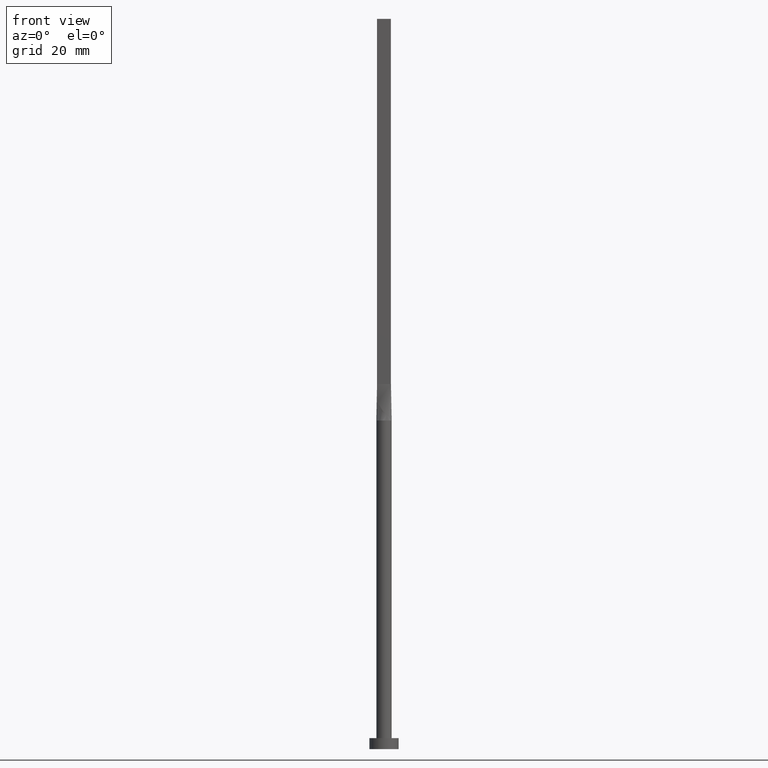
[diagram: clean part render]
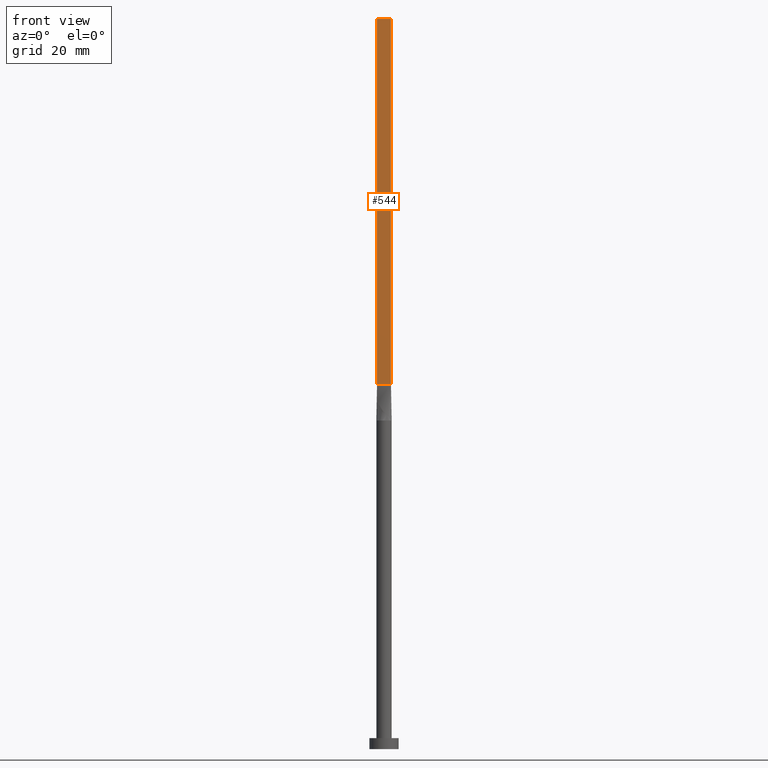
[diagram: same view with one face highlighted and labeled with its STEP entity id]
A machine part, front view. The second image highlights one B-rep face of the part: STEP entity #544.
In plain terms, the highlighted planar face has unit normal (0, 1, -0).
Its self-contained STEP definition (entity closure, byte-faithful):
#11 = DIRECTION ( 'NONE',  ( 1.000000000000000000, -5.706327223607920020E-17, 0.000000000000000000 ) ) ;
#12 = VERTEX_POINT ( 'NONE', #562 ) ;
#49 = VERTEX_POINT ( 'NONE', #447 ) ;
#54 = DIRECTION ( 'NONE',  ( -1.000000000000000000, 5.706327223607920020E-17, 0.000000000000000000 ) ) ;
#60 = CARTESIAN_POINT ( 'NONE',  ( -1.899999999999999911, -0.5999999999999995337, 200.0000000000000000 ) ) ;
#62 = EDGE_CURVE ( 'NONE', #190, #12, #91, .T. ) ;
#67 = ORIENTED_EDGE ( 'NONE', *, *, #179, .T. ) ;
#89 = EDGE_LOOP ( 'NONE', ( #155, #518, #458, #67 ) ) ;
#91 = LINE ( 'NONE', #406, #256 ) ;
#101 = LINE ( 'NONE', #370, #508 ) ;
#148 = PLANE ( 'NONE',  #288 ) ;
#155 = ORIENTED_EDGE ( 'NONE', *, *, #382, .T. ) ;
#179 = EDGE_CURVE ( 'NONE', #324, #49, #237, .T. ) ;
#184 = FACE_OUTER_BOUND ( 'NONE', #89, .T. ) ;
#188 = CARTESIAN_POINT ( 'NONE',  ( 1.899999999999999023, -0.5999999999999997558, 200.0000000000000000 ) ) ;
#190 = VERTEX_POINT ( 'NONE', #188 ) ;
#237 = LINE ( 'NONE', #333, #343 ) ;
#256 = VECTOR ( 'NONE', #542, 1000.000000000000000 ) ;
#275 = EDGE_CURVE ( 'NONE', #324, #190, #101, .T. ) ;
#288 = AXIS2_PLACEMENT_3D ( 'NONE', #60, #551, #54 ) ;
#324 = VERTEX_POINT ( 'NONE', #347 ) ;
#333 = CARTESIAN_POINT ( 'NONE',  ( -1.899999999999999911, -0.5999999999999995337, 200.0000000000000000 ) ) ;
#343 = VECTOR ( 'NONE', #560, 1000.000000000000000 ) ;
#344 = LINE ( 'NONE', #529, #439 ) ;
#347 = CARTESIAN_POINT ( 'NONE',  ( -1.899999999999999911, -0.5999999999999995337, 200.0000000000000000 ) ) ;
#370 = CARTESIAN_POINT ( 'NONE',  ( -1.899999999999999911, -0.5999999999999995337, 200.0000000000000000 ) ) ;
#382 = EDGE_CURVE ( 'NONE', #49, #12, #344, .T. ) ;
#406 = CARTESIAN_POINT ( 'NONE',  ( 1.899999999999999023, -0.5999999999999997558, 200.0000000000000000 ) ) ;
#436 = DIRECTION ( 'NONE',  ( 1.000000000000000000, -5.706327223607918787E-17, 0.000000000000000000 ) ) ;
#439 = VECTOR ( 'NONE', #436, 1000.000000000000000 ) ;
#447 = CARTESIAN_POINT ( 'NONE',  ( -1.899999999999999911, -0.5999999999999995337, 99.99999999999998579 ) ) ;
#458 = ORIENTED_EDGE ( 'NONE', *, *, #275, .F. ) ;
#508 = VECTOR ( 'NONE', #11, 1000.000000000000000 ) ;
#518 = ORIENTED_EDGE ( 'NONE', *, *, #62, .F. ) ;
#529 = CARTESIAN_POINT ( 'NONE',  ( -1.899999999999999911, -0.5999999999999995337, 99.99999999999998579 ) ) ;
#542 = DIRECTION ( 'NONE',  ( -0.000000000000000000, -0.000000000000000000, -1.000000000000000000 ) ) ;
#544 = ADVANCED_FACE ( 'NONE', ( #184 ), #148, .F. ) ;
#551 = DIRECTION ( 'NONE',  ( 5.706327223607920020E-17, 1.000000000000000000, -0.000000000000000000 ) ) ;
#560 = DIRECTION ( 'NONE',  ( -0.000000000000000000, -0.000000000000000000, -1.000000000000000000 ) ) ;
#562 = CARTESIAN_POINT ( 'NONE',  ( 1.899999999999999023, -0.5999999999999997558, 99.99999999999998579 ) ) ;